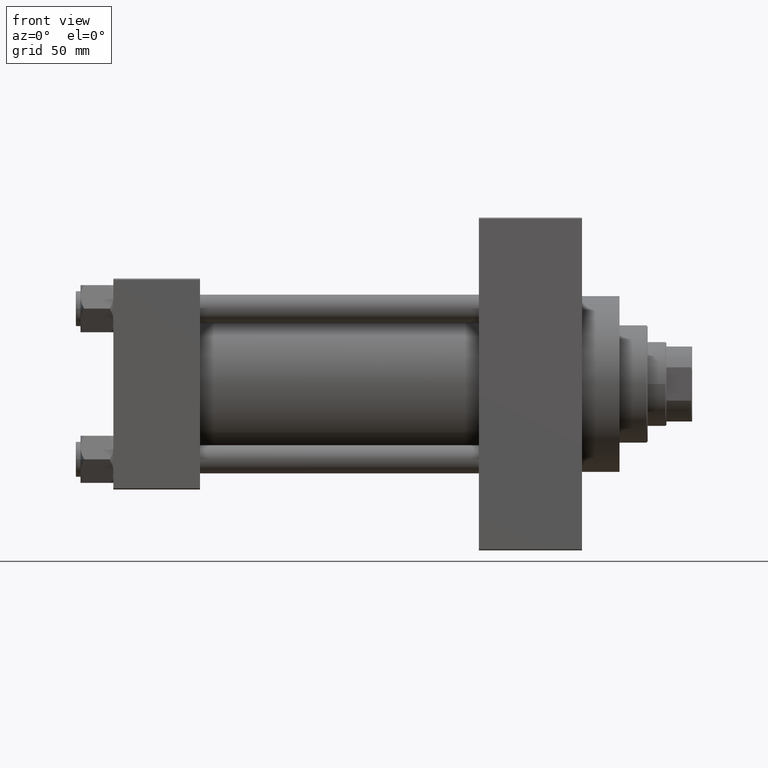
[diagram: clean part render]
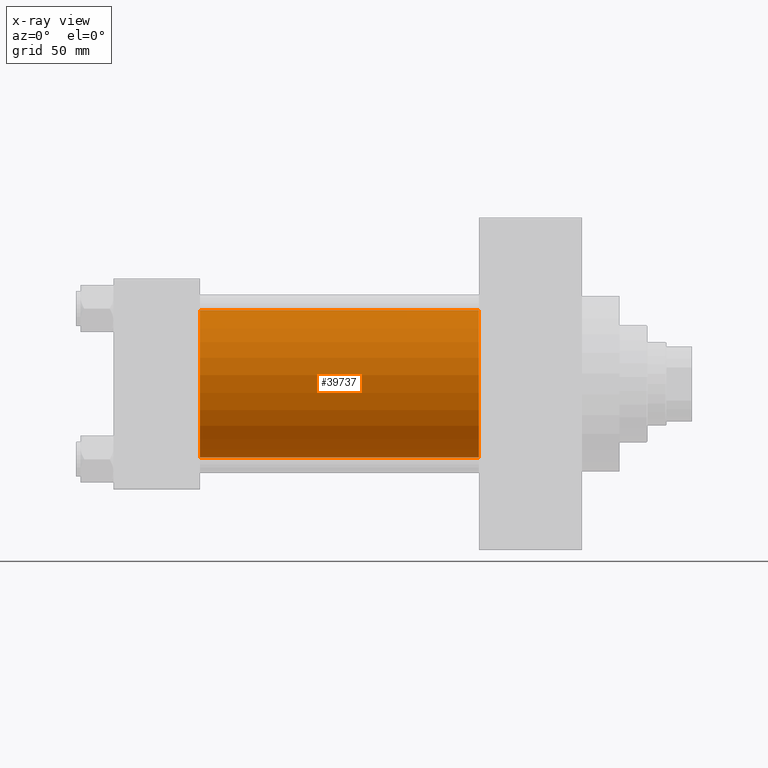
[diagram: x-ray — body ghosted, one internal face saturated and labeled with its STEP entity id]
A machine part, front view, then the same camera in x-ray: the body is ghosted and one INTERNAL B-rep face — a face not visible from any outside direction — is saturated and labeled: STEP entity #39737.
In plain terms, the highlighted cylindrical surface (partial cylindrical patch) has radius 31.5 mm, axis along (-1, -0, -0).
Its self-contained STEP definition (entity closure, byte-faithful):
#2468 = AXIS2_PLACEMENT_3D ( 'NONE', #21110, #35673, #32096 ) ;
#3832 = CARTESIAN_POINT ( 'NONE',  ( 156.0000000000000000, -2.602085213965210642E-15, 0.000000000000000000 ) ) ;
#5159 = ORIENTED_EDGE ( 'NONE', *, *, #6193, .T. ) ;
#6193 = EDGE_CURVE ( 'NONE', #21813, #46965, #7313, .T. ) ;
#7313 = CIRCLE ( 'NONE', #31735, 31.50000000000000000 ) ;
#9409 = DIRECTION ( 'NONE',  ( -1.000000000000000000, -0.000000000000000000, -0.000000000000000000 ) ) ;
#9417 = VECTOR ( 'NONE', #28600, 1000.000000000000000 ) ;
#10353 = FACE_OUTER_BOUND ( 'NONE', #20125, .T. ) ;
#12889 = CARTESIAN_POINT ( 'NONE',  ( 37.00000000000000000, -2.602085213965210642E-15, 0.000000000000000000 ) ) ;
#14024 = LINE ( 'NONE', #21203, #9417 ) ;
#18167 = DIRECTION ( 'NONE',  ( 0.000000000000000000, 0.000000000000000000, -1.000000000000000000 ) ) ;
#19048 = CIRCLE ( 'NONE', #34268, 31.50000000000000000 ) ;
#20125 = EDGE_LOOP ( 'NONE', ( #5159, #28922, #30251, #45249 ) ) ;
#21110 = CARTESIAN_POINT ( 'NONE',  ( 156.0000000000000000, -2.602085213965210642E-15, 0.000000000000000000 ) ) ;
#21203 = CARTESIAN_POINT ( 'NONE',  ( 156.0000000000000000, -2.602085213965210642E-15, 31.50000000000000000 ) ) ;
#21261 = EDGE_CURVE ( 'NONE', #46965, #36160, #27097, .T. ) ;
#21813 = VERTEX_POINT ( 'NONE', #36681 ) ;
#22720 = CARTESIAN_POINT ( 'NONE',  ( 156.0000000000000000, 1.255552203348951850E-15, -31.50000000000000000 ) ) ;
#24736 = VERTEX_POINT ( 'NONE', #32163 ) ;
#27097 = LINE ( 'NONE', #31389, #31839 ) ;
#28600 = DIRECTION ( 'NONE',  ( -1.000000000000000000, -0.000000000000000000, -0.000000000000000000 ) ) ;
#28922 = ORIENTED_EDGE ( 'NONE', *, *, #21261, .T. ) ;
#29091 = EDGE_CURVE ( 'NONE', #24736, #36160, #19048, .T. ) ;
#30251 = ORIENTED_EDGE ( 'NONE', *, *, #29091, .F. ) ;
#31285 = DIRECTION ( 'NONE',  ( 0.000000000000000000, 0.000000000000000000, -1.000000000000000000 ) ) ;
#31389 = CARTESIAN_POINT ( 'NONE',  ( 156.0000000000000000, 1.255552203348951850E-15, -31.50000000000000000 ) ) ;
#31735 = AXIS2_PLACEMENT_3D ( 'NONE', #3832, #36542, #18167 ) ;
#31839 = VECTOR ( 'NONE', #9409, 1000.000000000000000 ) ;
#32096 = DIRECTION ( 'NONE',  ( 0.000000000000000000, 0.000000000000000000, 1.000000000000000000 ) ) ;
#32163 = CARTESIAN_POINT ( 'NONE',  ( 37.00000000000000000, -2.602085213965210642E-15, 31.50000000000000000 ) ) ;
#34268 = AXIS2_PLACEMENT_3D ( 'NONE', #12889, #42247, #31285 ) ;
#35673 = DIRECTION ( 'NONE',  ( -1.000000000000000000, -0.000000000000000000, -0.000000000000000000 ) ) ;
#36160 = VERTEX_POINT ( 'NONE', #39381 ) ;
#36542 = DIRECTION ( 'NONE',  ( 1.000000000000000000, 0.000000000000000000, 0.000000000000000000 ) ) ;
#36681 = CARTESIAN_POINT ( 'NONE',  ( 156.0000000000000000, -2.602085213965210642E-15, 31.50000000000000000 ) ) ;
#39250 = CYLINDRICAL_SURFACE ( 'NONE', #2468, 31.50000000000000000 ) ;
#39381 = CARTESIAN_POINT ( 'NONE',  ( 37.00000000000000000, 1.255552203348951850E-15, -31.50000000000000000 ) ) ;
#39737 = ADVANCED_FACE ( 'NONE', ( #10353 ), #39250, .F. ) ;
#42247 = DIRECTION ( 'NONE',  ( 1.000000000000000000, 0.000000000000000000, 0.000000000000000000 ) ) ;
#42598 = EDGE_CURVE ( 'NONE', #21813, #24736, #14024, .T. ) ;
#45249 = ORIENTED_EDGE ( 'NONE', *, *, #42598, .F. ) ;
#46965 = VERTEX_POINT ( 'NONE', #22720 ) ;